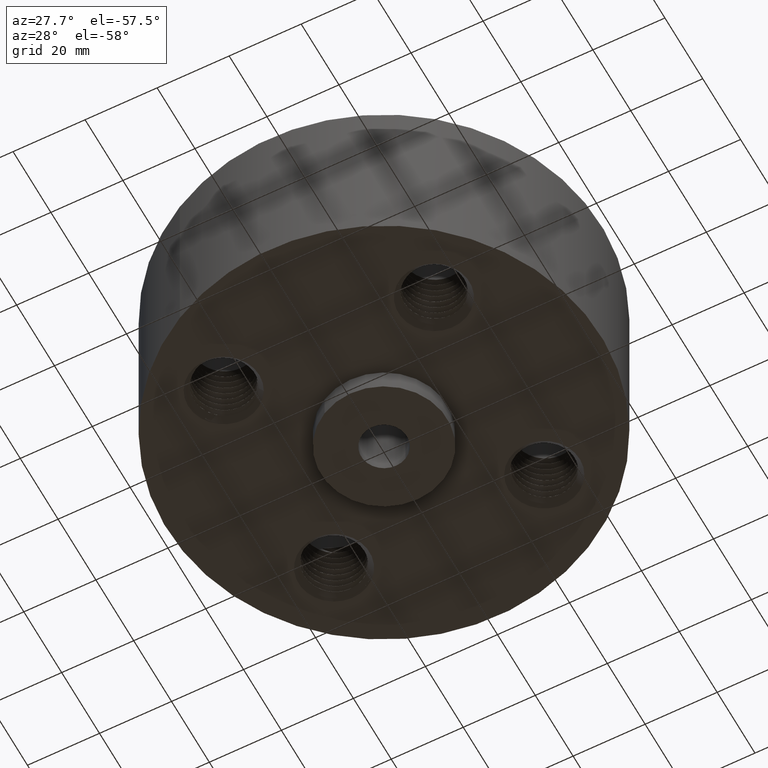
[diagram: clean part render]
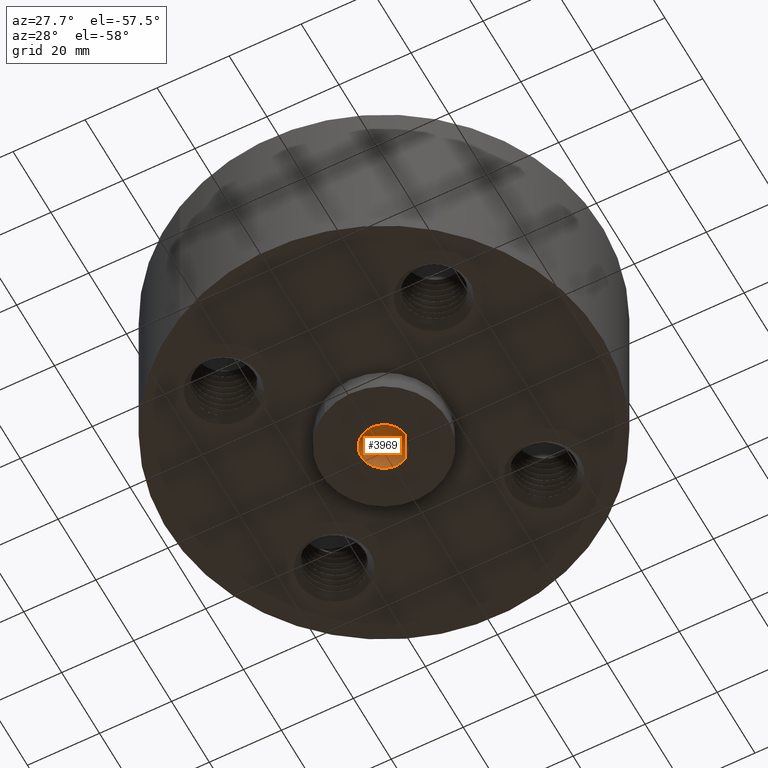
[diagram: same view with one face highlighted and labeled with its STEP entity id]
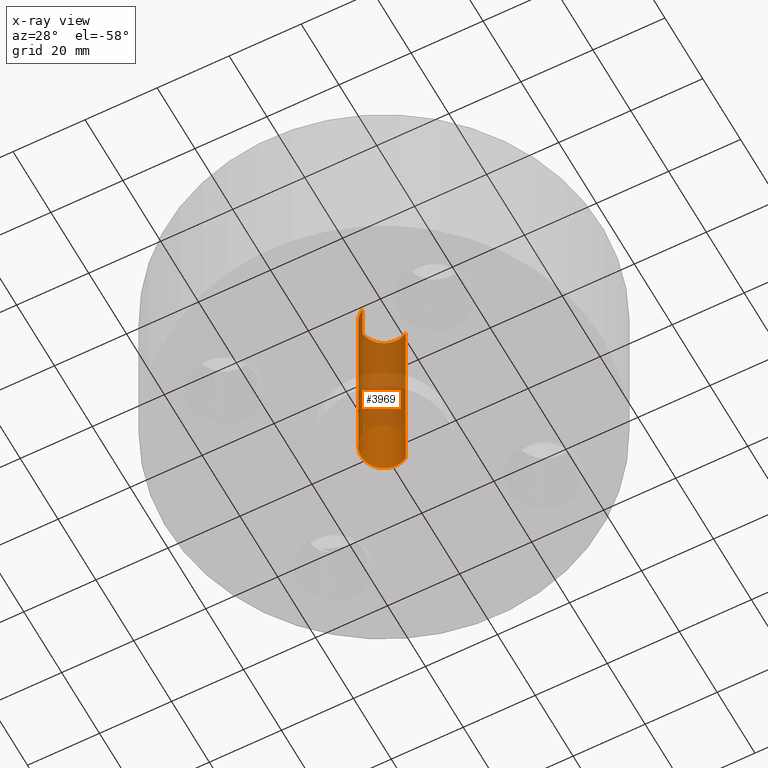
[diagram: x-ray of the same camera — body ghosted, the highlighted face saturated]
A machine part, auxiliary view. The second image highlights one B-rep face of the part: STEP entity #3969.
The next image is the same camera in x-ray: the body ghosted, the highlighted face saturated — about 68% of this face is hidden behind the body in this view.
In plain terms, the highlighted cylindrical surface (edge-blend (fillet) strip) has radius 6.35 mm, axis along (0, 0, -1).
Its self-contained STEP definition (entity closure, byte-faithful):
#3919=AXIS2_PLACEMENT_3D('Circle Axis2P3D',#3917,#3918,$) ;
#3930=AXIS2_PLACEMENT_3D('Cylinder Axis2P3D',#3927,#3928,#3929) ;
#3960=AXIS2_PLACEMENT_3D('Circle Axis2P3D',#3958,#3959,$) ;
#3912=CARTESIAN_POINT('Vertex',(0.119856384652,0.219395640473,-0.250000000001)) ;
#3914=CARTESIAN_POINT('Vertex',(-0.119856384652,-0.219395640473,-0.250000000001)) ;
#3917=CARTESIAN_POINT('Axis2P3D Location',(0.,0.,-0.250000000001)) ;
#3927=CARTESIAN_POINT('Axis2P3D Location',(0.,0.,0.875000000003)) ;
#3936=CARTESIAN_POINT('Vertex',(0.119856384652,0.219395640473,2.00000000001)) ;
#3938=CARTESIAN_POINT('Vertex',(-0.119856384652,-0.219395640473,2.00000000001)) ;
#3941=CARTESIAN_POINT('Line Origine',(0.119856384652,0.219395640473,0.875000000004)) ;
#3946=CARTESIAN_POINT('Line Origine',(-0.119856384652,-0.219395640473,0.875000000004)) ;
#3958=CARTESIAN_POINT('Axis2P3D Location',(0.,0.,2.00000000001)) ;
#3918=DIRECTION('Axis2P3D Direction',(0.,0.,-0.0393700787402)) ;
#3928=DIRECTION('Axis2P3D Direction',(0.,0.,-0.0393700787402)) ;
#3929=DIRECTION('Axis2P3D XDirection',(-0.0188750212049,-0.0345504945626,0.)) ;
#3942=DIRECTION('Vector Direction',(0.,0.,-0.0393700787402)) ;
#3947=DIRECTION('Vector Direction',(0.,0.,-0.0393700787402)) ;
#3959=DIRECTION('Axis2P3D Direction',(0.,0.,-0.0393700787402)) ;
#3943=VECTOR('Line Direction',#3942,0.0393700787402) ;
#3948=VECTOR('Line Direction',#3947,0.0393700787402) ;
#3964=ORIENTED_EDGE('',*,*,#3962,.F.) ;
#3965=ORIENTED_EDGE('',*,*,#3950,.T.) ;
#3966=ORIENTED_EDGE('',*,*,#3921,.T.) ;
#3967=ORIENTED_EDGE('',*,*,#3945,.F.) ;
#3969=ADVANCED_FACE('PartBody',(#3968),#3931,.F.) ;
#3920=CIRCLE('generated circle',#3919,0.250000000001) ;
#3961=CIRCLE('generated circle',#3960,0.250000000001) ;
#3931=CYLINDRICAL_SURFACE('generated cylinder',#3930,0.250000000001) ;
#3921=EDGE_CURVE('',#3915,#3913,#3920,.T.) ;
#3945=EDGE_CURVE('',#3937,#3913,#3944,.T.) ;
#3950=EDGE_CURVE('',#3939,#3915,#3949,.T.) ;
#3962=EDGE_CURVE('',#3939,#3937,#3961,.T.) ;
#3963=EDGE_LOOP('',(#3964,#3965,#3966,#3967)) ;
#3968=FACE_OUTER_BOUND('',#3963,.T.) ;
#3944=LINE('Line',#3941,#3943) ;
#3949=LINE('Line',#3946,#3948) ;
#3913=VERTEX_POINT('',#3912) ;
#3915=VERTEX_POINT('',#3914) ;
#3937=VERTEX_POINT('',#3936) ;
#3939=VERTEX_POINT('',#3938) ;